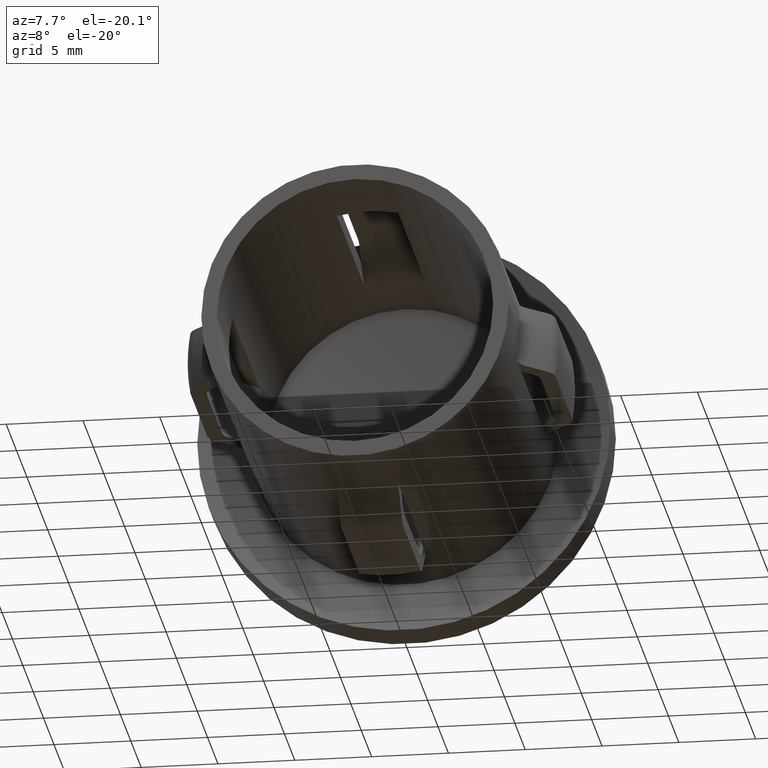
[diagram: clean part render]
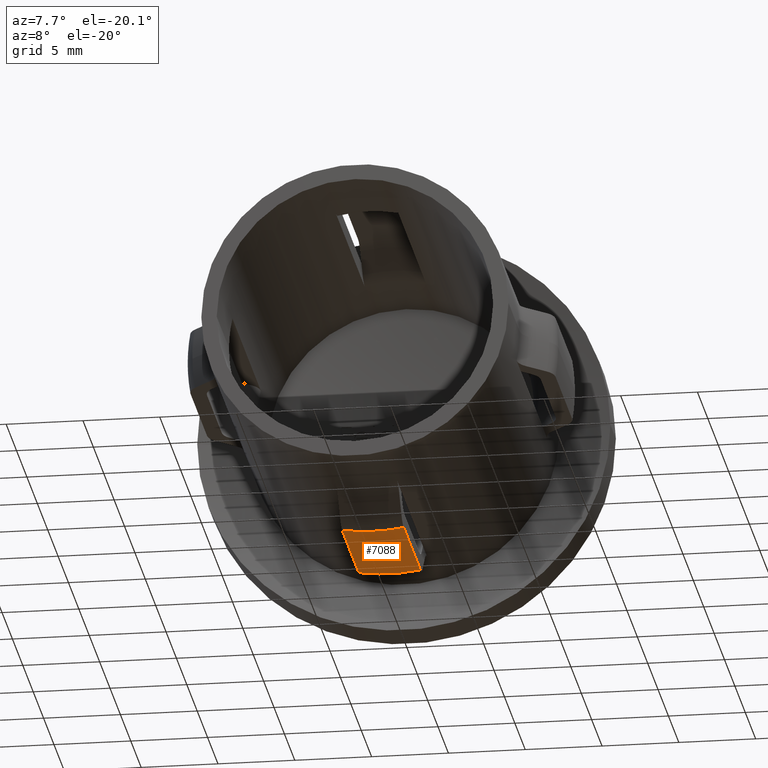
[diagram: same view with one face highlighted and labeled with its STEP entity id]
A machine part, auxiliary view. The second image highlights one B-rep face of the part: STEP entity #7088.
In plain terms, the highlighted cylindrical surface (partial cylindrical patch) has radius 12.05 mm, axis along (-0, -1, -0).
Its self-contained STEP definition (entity closure, byte-faithful):
#204 = LINE ( 'NONE', #460, #3540 ) ;
#358 = CARTESIAN_POINT ( 'NONE',  ( 2.000000000000002220, 20.00000000000000000, -11.88286581595540703 ) ) ;
#460 = CARTESIAN_POINT ( 'NONE',  ( -1.999999999999998224, 20.00000000000000000, -11.88286581595543367 ) ) ;
#796 = CARTESIAN_POINT ( 'NONE',  ( -1.999999999999998668, 8.707359312880743829, -11.88286581595543367 ) ) ;
#932 = CARTESIAN_POINT ( 'NONE',  ( -2.554140963682113618E-14, 16.70735931288075093, 0.000000000000000000 ) ) ;
#1236 = EDGE_CURVE ( 'NONE', #8480, #8352, #204, .T. ) ;
#1513 = FACE_OUTER_BOUND ( 'NONE', #11753, .T. ) ;
#1662 = CARTESIAN_POINT ( 'NONE',  ( 0.000000000000000000, 25.50000000000000000, 0.000000000000000000 ) ) ;
#2968 = DIRECTION ( 'NONE',  ( -2.904862207577519418E-15, -1.000000000000000000, -0.000000000000000000 ) ) ;
#3033 = CARTESIAN_POINT ( 'NONE',  ( 2.000000000000001776, 8.707359312880743829, -11.88286581595540703 ) ) ;
#3245 = DIRECTION ( 'NONE',  ( -2.904862207577519418E-15, -1.000000000000000000, -0.000000000000000000 ) ) ;
#3297 = VERTEX_POINT ( 'NONE', #11603 ) ;
#3540 = VECTOR ( 'NONE', #3847, 1000.000000000000000 ) ;
#3558 = CARTESIAN_POINT ( 'NONE',  ( -1.999999999999998224, 16.70735931288071896, -11.88286581595543367 ) ) ;
#3759 = DIRECTION ( 'NONE',  ( -2.449293598294745364E-17, -1.000000000000000000, -0.000000000000000000 ) ) ;
#3847 = DIRECTION ( 'NONE',  ( -2.449293598294745364E-17, -1.000000000000000000, -0.000000000000000000 ) ) ;
#4040 = VERTEX_POINT ( 'NONE', #3033 ) ;
#4368 = DIRECTION ( 'NONE',  ( 1.000000000000000000, -2.879209088758179370E-15, 0.000000000000000000 ) ) ;
#4472 = AXIS2_PLACEMENT_3D ( 'NONE', #13413, #6660, #5794 ) ;
#5476 = ORIENTED_EDGE ( 'NONE', *, *, #1236, .F. ) ;
#5794 = DIRECTION ( 'NONE',  ( 1.000000000000000000, -2.879209088758173453E-15, 0.000000000000000000 ) ) ;
#6209 = ORIENTED_EDGE ( 'NONE', *, *, #8679, .T. ) ;
#6660 = DIRECTION ( 'NONE',  ( -2.904862207577519418E-15, -1.000000000000000000, -0.000000000000000000 ) ) ;
#6795 = AXIS2_PLACEMENT_3D ( 'NONE', #1662, #2968, #12872 ) ;
#7088 = ADVANCED_FACE ( 'NONE', ( #1513 ), #12047, .T. ) ;
#8352 = VERTEX_POINT ( 'NONE', #796 ) ;
#8480 = VERTEX_POINT ( 'NONE', #3558 ) ;
#8679 = EDGE_CURVE ( 'NONE', #3297, #4040, #13455, .T. ) ;
#8712 = ORIENTED_EDGE ( 'NONE', *, *, #10228, .T. ) ;
#8864 = VECTOR ( 'NONE', #3759, 1000.000000000000000 ) ;
#10228 = EDGE_CURVE ( 'NONE', #8480, #3297, #13284, .T. ) ;
#11499 = CIRCLE ( 'NONE', #4472, 12.05000000000005222 ) ;
#11603 = CARTESIAN_POINT ( 'NONE',  ( 2.000000000000002220, 16.70735931288071896, -11.88286581595540703 ) ) ;
#11613 = AXIS2_PLACEMENT_3D ( 'NONE', #932, #3245, #4368 ) ;
#11753 = EDGE_LOOP ( 'NONE', ( #13302, #5476, #8712, #6209 ) ) ;
#12026 = EDGE_CURVE ( 'NONE', #8352, #4040, #11499, .T. ) ;
#12047 = CYLINDRICAL_SURFACE ( 'NONE', #6795, 12.05000000000003979 ) ;
#12872 = DIRECTION ( 'NONE',  ( 1.000000000000000000, -2.879209088758176609E-15, 0.000000000000000000 ) ) ;
#13284 = CIRCLE ( 'NONE', #11613, 12.05000000000002736 ) ;
#13302 = ORIENTED_EDGE ( 'NONE', *, *, #12026, .F. ) ;
#13413 = CARTESIAN_POINT ( 'NONE',  ( -4.878030729744130099E-14, 8.707359312880747382, 0.000000000000000000 ) ) ;
#13455 = LINE ( 'NONE', #358, #8864 ) ;